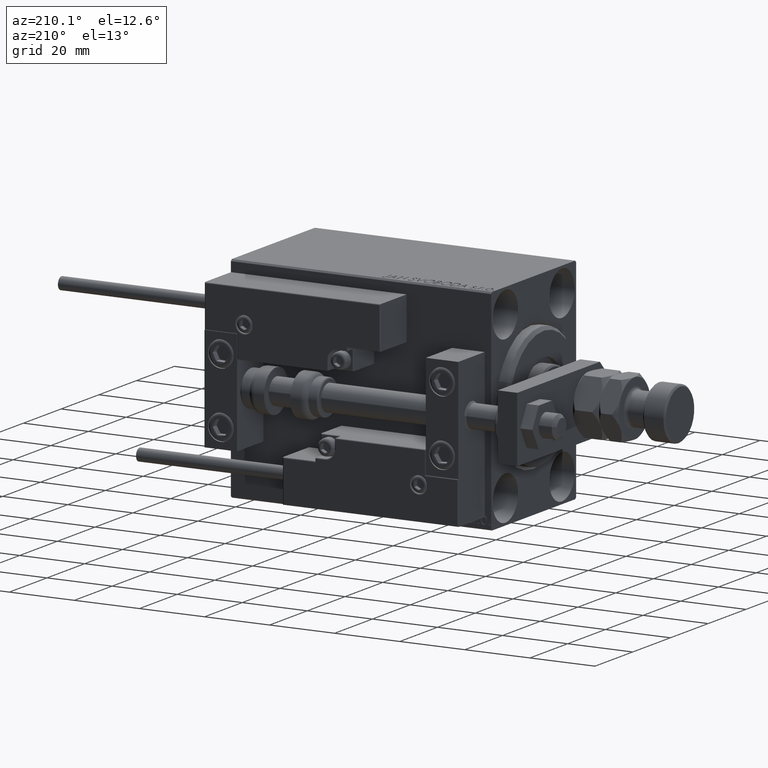
[diagram: clean part render]
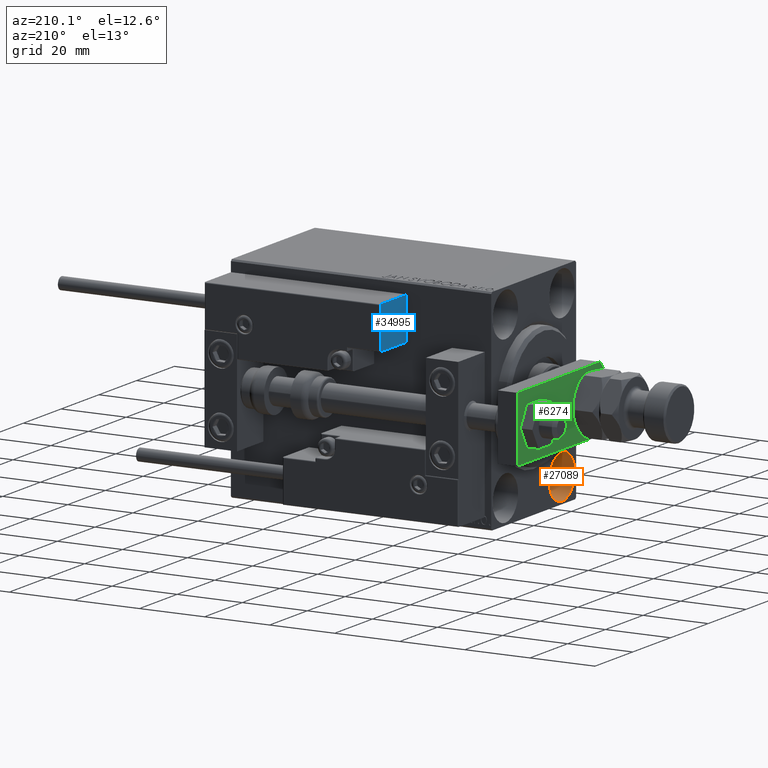
[diagram: same view with three faces highlighted in distinct colors, each labeled with its STEP entity id]
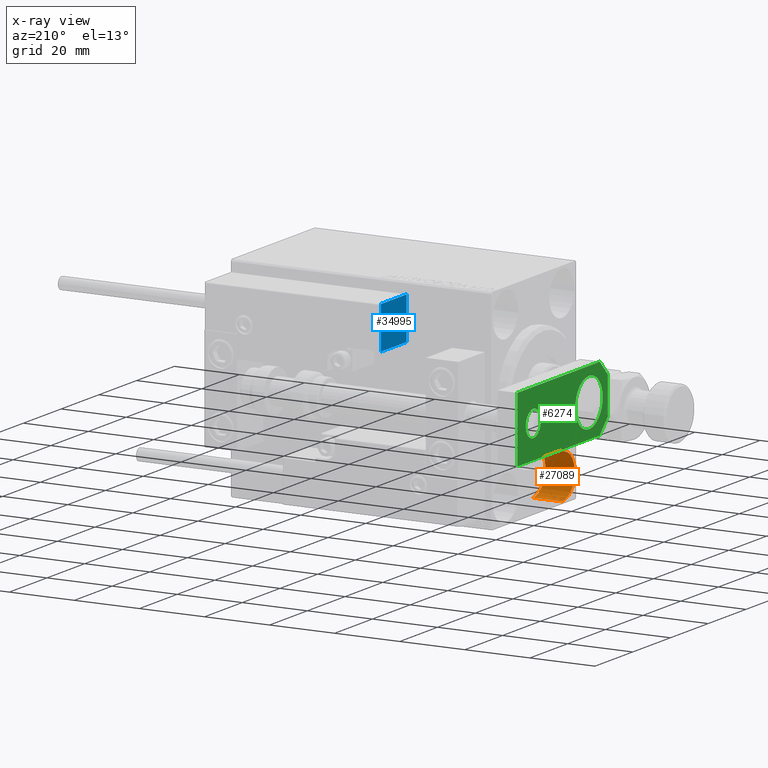
[diagram: x-ray of the same camera — body ghosted, the three highlighted faces saturated]
A machine part, auxiliary view with three faces highlighted in distinct colors.
The next image is the same camera in x-ray (body ghosted, the three faces saturated) — at least one of them is partly hidden behind the body in this view.
Their STEP definitions:

[orange] entity #27089 — the highlighted cylindrical surface (edge-blend (fillet) strip) has radius 6.75 mm, axis along (-1, -0, -0).
#959 = EDGE_LOOP ( 'NONE', ( #30609, #44643, #35064, #48747 ) ) ;
#2972 = EDGE_CURVE ( 'NONE', #47180, #16046, #48397, .T. ) ;
#3697 = VERTEX_POINT ( 'NONE', #36348 ) ;
#3776 = LINE ( 'NONE', #27694, #15138 ) ;
#9168 = VECTOR ( 'NONE', #12382, 1000.000000000000000 ) ;
#11245 = EDGE_CURVE ( 'NONE', #3697, #47180, #3776, .T. ) ;
#12130 = LINE ( 'NONE', #24221, #9168 ) ;
#12382 = DIRECTION ( 'NONE',  ( -1.000000000000000000, -0.000000000000000000, -0.000000000000000000 ) ) ;
#12759 = CARTESIAN_POINT ( 'NONE',  ( 9.000000000000000000, -15.00000000000000355, -25.00000000000000000 ) ) ;
#12984 = CARTESIAN_POINT ( 'NONE',  ( 9.000000000000000000, -15.00000000000000355, -18.25000000000000355 ) ) ;
#13014 = DIRECTION ( 'NONE',  ( -1.000000000000000000, 0.000000000000000000, 0.000000000000000000 ) ) ;
#14410 = CARTESIAN_POINT ( 'NONE',  ( 9.000000000000000000, -15.00000000000000355, -25.00000000000000000 ) ) ;
#15138 = VECTOR ( 'NONE', #43717, 1000.000000000000000 ) ;
#16046 = VERTEX_POINT ( 'NONE', #30353 ) ;
#18994 = AXIS2_PLACEMENT_3D ( 'NONE', #21526, #21001, #48632 ) ;
#20064 = AXIS2_PLACEMENT_3D ( 'NONE', #12759, #13014, #28786 ) ;
#21001 = DIRECTION ( 'NONE',  ( -1.000000000000000000, 0.000000000000000000, 0.000000000000000000 ) ) ;
#21526 = CARTESIAN_POINT ( 'NONE',  ( 0.000000000000000000, -15.00000000000000355, -25.00000000000000000 ) ) ;
#22286 = FACE_OUTER_BOUND ( 'NONE', #959, .T. ) ;
#22617 = CIRCLE ( 'NONE', #20064, 6.749999999999999112 ) ;
#24009 = EDGE_CURVE ( 'NONE', #35345, #16046, #12130, .T. ) ;
#24221 = CARTESIAN_POINT ( 'NONE',  ( 9.000000000000000000, -15.00000000000000355, -18.25000000000000355 ) ) ;
#27089 = ADVANCED_FACE ( 'NONE', ( #22286 ), #34386, .F. ) ;
#27694 = CARTESIAN_POINT ( 'NONE',  ( 9.000000000000000000, -15.00000000000000355, -31.75000000000000000 ) ) ;
#28786 = DIRECTION ( 'NONE',  ( 0.000000000000000000, 0.000000000000000000, 1.000000000000000000 ) ) ;
#30353 = CARTESIAN_POINT ( 'NONE',  ( 0.000000000000000000, -15.00000000000000355, -18.25000000000000355 ) ) ;
#30609 = ORIENTED_EDGE ( 'NONE', *, *, #43607, .F. ) ;
#33874 = DIRECTION ( 'NONE',  ( 0.000000000000000000, 0.000000000000000000, 1.000000000000000000 ) ) ;
#34386 = CYLINDRICAL_SURFACE ( 'NONE', #38656, 6.749999999999999112 ) ;
#35064 = ORIENTED_EDGE ( 'NONE', *, *, #2972, .T. ) ;
#35345 = VERTEX_POINT ( 'NONE', #12984 ) ;
#36348 = CARTESIAN_POINT ( 'NONE',  ( 9.000000000000000000, -15.00000000000000355, -31.75000000000000000 ) ) ;
#38656 = AXIS2_PLACEMENT_3D ( 'NONE', #14410, #46477, #33874 ) ;
#43607 = EDGE_CURVE ( 'NONE', #3697, #35345, #22617, .T. ) ;
#43717 = DIRECTION ( 'NONE',  ( -1.000000000000000000, -0.000000000000000000, -0.000000000000000000 ) ) ;
#44643 = ORIENTED_EDGE ( 'NONE', *, *, #11245, .T. ) ;
#46477 = DIRECTION ( 'NONE',  ( -1.000000000000000000, -0.000000000000000000, -0.000000000000000000 ) ) ;
#47180 = VERTEX_POINT ( 'NONE', #50916 ) ;
#48397 = CIRCLE ( 'NONE', #18994, 6.749999999999999112 ) ;
#48632 = DIRECTION ( 'NONE',  ( 0.000000000000000000, 0.000000000000000000, 1.000000000000000000 ) ) ;
#48747 = ORIENTED_EDGE ( 'NONE', *, *, #24009, .F. ) ;
#50916 = CARTESIAN_POINT ( 'NONE',  ( 0.000000000000000000, -15.00000000000000355, -31.75000000000000000 ) ) ;

[blue] entity #34995 — the highlighted planar face has unit normal (1, -0, -0).
#1737 = VECTOR ( 'NONE', #6452, 1000.000000000000000 ) ;
#3407 = VECTOR ( 'NONE', #40182, 1000.000000000000000 ) ;
#3911 = EDGE_CURVE ( 'NONE', #18667, #27446, #20187, .T. ) ;
#3927 = LINE ( 'NONE', #24157, #3407 ) ;
#5101 = CARTESIAN_POINT ( 'NONE',  ( 27.00000000000006395, 20.00000000000001776, 0.000000000000000000 ) ) ;
#5958 = PLANE ( 'NONE',  #16267 ) ;
#6452 = DIRECTION ( 'NONE',  ( -0.000000000000000000, -1.000000000000000000, -0.000000000000000000 ) ) ;
#7218 = EDGE_CURVE ( 'NONE', #25046, #18667, #36218, .T. ) ;
#7251 = CARTESIAN_POINT ( 'NONE',  ( 27.00000000000006395, 7.000000000000007994, 0.000000000000000000 ) ) ;
#8829 = ORIENTED_EDGE ( 'NONE', *, *, #26097, .F. ) ;
#9226 = ORIENTED_EDGE ( 'NONE', *, *, #47409, .T. ) ;
#9872 = DIRECTION ( 'NONE',  ( -1.000000000000000000, 0.000000000000000000, 0.000000000000000000 ) ) ;
#16267 = AXIS2_PLACEMENT_3D ( 'NONE', #41434, #9872, #30623 ) ;
#17597 = CARTESIAN_POINT ( 'NONE',  ( 27.00000000000006395, 20.00000000000001776, 13.70000000000000107 ) ) ;
#18277 = CARTESIAN_POINT ( 'NONE',  ( 27.00000000000006395, 7.000000000000007994, 13.70000000000000107 ) ) ;
#18667 = VERTEX_POINT ( 'NONE', #7251 ) ;
#19135 = DIRECTION ( 'NONE',  ( -0.000000000000000000, -0.000000000000000000, -1.000000000000000000 ) ) ;
#20016 = VERTEX_POINT ( 'NONE', #17597 ) ;
#20187 = LINE ( 'NONE', #36224, #44247 ) ;
#24157 = CARTESIAN_POINT ( 'NONE',  ( 27.00000000000006395, 20.00000000000001776, 14.00000000000000000 ) ) ;
#25014 = CARTESIAN_POINT ( 'NONE',  ( 27.00000000000006395, 7.000000000000007994, 13.70000000000000107 ) ) ;
#25046 = VERTEX_POINT ( 'NONE', #25014 ) ;
#26097 = EDGE_CURVE ( 'NONE', #20016, #27446, #3927, .T. ) ;
#27072 = EDGE_LOOP ( 'NONE', ( #8829, #9226, #48219, #39961 ) ) ;
#27446 = VERTEX_POINT ( 'NONE', #5101 ) ;
#28320 = CARTESIAN_POINT ( 'NONE',  ( 27.00000000000006395, 7.000000000000007994, 14.00000000000000000 ) ) ;
#30623 = DIRECTION ( 'NONE',  ( 0.000000000000000000, 0.000000000000000000, 1.000000000000000000 ) ) ;
#34995 = ADVANCED_FACE ( 'NONE', ( #38512 ), #5958, .F. ) ;
#36218 = LINE ( 'NONE', #28320, #51903 ) ;
#36224 = CARTESIAN_POINT ( 'NONE',  ( 27.00000000000006395, 7.000000000000007994, 0.000000000000000000 ) ) ;
#38512 = FACE_OUTER_BOUND ( 'NONE', #27072, .T. ) ;
#39961 = ORIENTED_EDGE ( 'NONE', *, *, #3911, .T. ) ;
#40182 = DIRECTION ( 'NONE',  ( -0.000000000000000000, -0.000000000000000000, -1.000000000000000000 ) ) ;
#41434 = CARTESIAN_POINT ( 'NONE',  ( 27.00000000000006395, 7.000000000000007994, 14.00000000000000000 ) ) ;
#43580 = DIRECTION ( 'NONE',  ( 0.000000000000000000, 1.000000000000000000, 0.000000000000000000 ) ) ;
#44247 = VECTOR ( 'NONE', #43580, 1000.000000000000000 ) ;
#47409 = EDGE_CURVE ( 'NONE', #20016, #25046, #51828, .T. ) ;
#48219 = ORIENTED_EDGE ( 'NONE', *, *, #7218, .T. ) ;
#51828 = LINE ( 'NONE', #18277, #1737 ) ;
#51903 = VECTOR ( 'NONE', #19135, 1000.000000000000000 ) ;

[green] entity #6274 — the highlighted planar face has unit normal (-1, 0, 0).
#1729 = EDGE_CURVE ( 'NONE', #7930, #41730, #38683, .T. ) ;
#1829 = EDGE_CURVE ( 'NONE', #41730, #22727, #11864, .T. ) ;
#2413 = ORIENTED_EDGE ( 'NONE', *, *, #12101, .F. ) ;
#2641 = VERTEX_POINT ( 'NONE', #29476 ) ;
#3233 = DIRECTION ( 'NONE',  ( 1.000000000000000000, 0.000000000000000000, 0.000000000000000000 ) ) ;
#3610 = EDGE_CURVE ( 'NONE', #8636, #46577, #15330, .T. ) ;
#3979 = CARTESIAN_POINT ( 'NONE',  ( -10.00000000000000533, 0.000000000000000000, 6.000000000000000000 ) ) ;
#4453 = EDGE_LOOP ( 'NONE', ( #2413, #37684 ) ) ;
#5239 = CARTESIAN_POINT ( 'NONE',  ( 10.00000000000000533, 4.239999999999986890, 6.000000000000000000 ) ) ;
#6274 = ADVANCED_FACE ( 'NONE', ( #13774, #41890, #14553 ), #14800, .T. ) ;
#6775 = VECTOR ( 'NONE', #32190, 1000.000000000000114 ) ;
#7471 = VERTEX_POINT ( 'NONE', #47138 ) ;
#7880 = ORIENTED_EDGE ( 'NONE', *, *, #22035, .F. ) ;
#7930 = VERTEX_POINT ( 'NONE', #27822 ) ;
#8056 = EDGE_CURVE ( 'NONE', #2641, #21985, #26766, .T. ) ;
#8636 = VERTEX_POINT ( 'NONE', #5239 ) ;
#9095 = AXIS2_PLACEMENT_3D ( 'NONE', #26278, #33910, #41273 ) ;
#9472 = LINE ( 'NONE', #18654, #46068 ) ;
#9878 = AXIS2_PLACEMENT_3D ( 'NONE', #15060, #46864, #3233 ) ;
#10000 = AXIS2_PLACEMENT_3D ( 'NONE', #16774, #25700, #41462 ) ;
#10252 = CARTESIAN_POINT ( 'NONE',  ( 5.759999999999998010, 0.000000000000000000, 6.000000000000000000 ) ) ;
#10823 = DIRECTION ( 'NONE',  ( 0.000000000000000000, 0.000000000000000000, 1.000000000000000000 ) ) ;
#11640 = CARTESIAN_POINT ( 'NONE',  ( 10.00000000000000533, 0.000000000000000000, 6.000000000000000000 ) ) ;
#11864 = LINE ( 'NONE', #3979, #33272 ) ;
#12101 = EDGE_CURVE ( 'NONE', #7471, #27657, #19096, .T. ) ;
#13112 = VECTOR ( 'NONE', #15286, 999.9999999999998863 ) ;
#13774 = FACE_BOUND ( 'NONE', #26674, .T. ) ;
#14553 = FACE_BOUND ( 'NONE', #4453, .T. ) ;
#14800 = PLANE ( 'NONE',  #9878 ) ;
#15060 = CARTESIAN_POINT ( 'NONE',  ( 0.000000000000000000, 0.000000000000000000, 6.000000000000000000 ) ) ;
#15286 = DIRECTION ( 'NONE',  ( 0.7071067811865464625, -0.7071067811865486830, 0.000000000000000000 ) ) ;
#15330 = LINE ( 'NONE', #11640, #16532 ) ;
#16300 = ORIENTED_EDGE ( 'NONE', *, *, #27833, .T. ) ;
#16532 = VECTOR ( 'NONE', #43707, 1000.000000000000000 ) ;
#16774 = CARTESIAN_POINT ( 'NONE',  ( -1.432611055310774642E-16, 39.50000000000000000, 6.000000000000000000 ) ) ;
#18141 = DIRECTION ( 'NONE',  ( -1.000000000000000000, 0.000000000000000000, 0.000000000000000000 ) ) ;
#18654 = CARTESIAN_POINT ( 'NONE',  ( 10.00000000000000178, 48.00000000000000000, 6.000000000000000000 ) ) ;
#19096 = CIRCLE ( 'NONE', #32544, 7.250000000000000000 ) ;
#19417 = VECTOR ( 'NONE', #22804, 1000.000000000000000 ) ;
#20309 = CIRCLE ( 'NONE', #36306, 7.250000000000000000 ) ;
#20902 = ORIENTED_EDGE ( 'NONE', *, *, #8056, .F. ) ;
#21301 = CARTESIAN_POINT ( 'NONE',  ( -5.759999999999997122, 0.000000000000000000, 6.000000000000000000 ) ) ;
#21632 = ORIENTED_EDGE ( 'NONE', *, *, #3610, .T. ) ;
#21691 = VERTEX_POINT ( 'NONE', #26340 ) ;
#21985 = VERTEX_POINT ( 'NONE', #29693 ) ;
#22035 = EDGE_CURVE ( 'NONE', #21985, #2641, #47715, .T. ) ;
#22727 = VERTEX_POINT ( 'NONE', #10252 ) ;
#22804 = DIRECTION ( 'NONE',  ( -1.084202172485504434E-16, -1.000000000000000000, 0.000000000000000000 ) ) ;
#22910 = DIRECTION ( 'NONE',  ( 1.000000000000000000, 0.000000000000000000, 0.000000000000000000 ) ) ;
#22946 = EDGE_CURVE ( 'NONE', #46577, #21691, #9472, .T. ) ;
#24478 = DIRECTION ( 'NONE',  ( 1.000000000000000000, 0.000000000000000000, 0.000000000000000000 ) ) ;
#25681 = EDGE_LOOP ( 'NONE', ( #16300, #34523, #49113, #42843, #21632, #27198 ) ) ;
#25700 = DIRECTION ( 'NONE',  ( 0.000000000000000000, 0.000000000000000000, 1.000000000000000000 ) ) ;
#26278 = CARTESIAN_POINT ( 'NONE',  ( -1.432611055310774642E-16, 39.50000000000000000, 6.000000000000000000 ) ) ;
#26340 = CARTESIAN_POINT ( 'NONE',  ( -10.00000000000000000, 48.00000000000000000, 6.000000000000000000 ) ) ;
#26674 = EDGE_LOOP ( 'NONE', ( #20902, #7880 ) ) ;
#26766 = CIRCLE ( 'NONE', #10000, 4.000000000000000888 ) ;
#27121 = CARTESIAN_POINT ( 'NONE',  ( -9.629649721936179265E-32, 10.00000000000000178, 6.000000000000000000 ) ) ;
#27122 = CARTESIAN_POINT ( 'NONE',  ( -2.880000000000006999, -2.879999999999998561, 6.000000000000000000 ) ) ;
#27198 = ORIENTED_EDGE ( 'NONE', *, *, #22946, .T. ) ;
#27399 = EDGE_CURVE ( 'NONE', #22727, #8636, #35616, .T. ) ;
#27657 = VERTEX_POINT ( 'NONE', #43164 ) ;
#27822 = CARTESIAN_POINT ( 'NONE',  ( -10.00000000000000533, 4.240000000000021529, 6.000000000000000000 ) ) ;
#27833 = EDGE_CURVE ( 'NONE', #21691, #7930, #38322, .T. ) ;
#29476 = CARTESIAN_POINT ( 'NONE',  ( -4.000000000000000888, 39.50000000000000000, 6.000000000000000000 ) ) ;
#29693 = CARTESIAN_POINT ( 'NONE',  ( 4.000000000000000888, 39.50000000000000000, 6.000000000000000000 ) ) ;
#31019 = EDGE_CURVE ( 'NONE', #27657, #7471, #20309, .T. ) ;
#32190 = DIRECTION ( 'NONE',  ( 0.7071067811865492381, 0.7071067811865457964, -0.000000000000000000 ) ) ;
#32544 = AXIS2_PLACEMENT_3D ( 'NONE', #42585, #42335, #50990 ) ;
#33272 = VECTOR ( 'NONE', #24478, 1000.000000000000000 ) ;
#33910 = DIRECTION ( 'NONE',  ( 0.000000000000000000, 0.000000000000000000, 1.000000000000000000 ) ) ;
#34523 = ORIENTED_EDGE ( 'NONE', *, *, #1729, .T. ) ;
#34654 = CARTESIAN_POINT ( 'NONE',  ( -10.00000000000000000, 48.00000000000000000, 6.000000000000000000 ) ) ;
#35616 = LINE ( 'NONE', #51385, #6775 ) ;
#36306 = AXIS2_PLACEMENT_3D ( 'NONE', #27121, #10823, #22910 ) ;
#37684 = ORIENTED_EDGE ( 'NONE', *, *, #31019, .F. ) ;
#38322 = LINE ( 'NONE', #34654, #19417 ) ;
#38683 = LINE ( 'NONE', #27122, #13112 ) ;
#41027 = CARTESIAN_POINT ( 'NONE',  ( 10.00000000000000178, 48.00000000000000000, 6.000000000000000000 ) ) ;
#41273 = DIRECTION ( 'NONE',  ( 1.000000000000000000, 0.000000000000000000, 0.000000000000000000 ) ) ;
#41462 = DIRECTION ( 'NONE',  ( 1.000000000000000000, 0.000000000000000000, 0.000000000000000000 ) ) ;
#41730 = VERTEX_POINT ( 'NONE', #21301 ) ;
#41890 = FACE_OUTER_BOUND ( 'NONE', #25681, .T. ) ;
#42335 = DIRECTION ( 'NONE',  ( 0.000000000000000000, 0.000000000000000000, 1.000000000000000000 ) ) ;
#42585 = CARTESIAN_POINT ( 'NONE',  ( -9.629649721936179265E-32, 10.00000000000000178, 6.000000000000000000 ) ) ;
#42843 = ORIENTED_EDGE ( 'NONE', *, *, #27399, .T. ) ;
#43164 = CARTESIAN_POINT ( 'NONE',  ( 7.250000000000000000, 10.00000000000000355, 6.000000000000000000 ) ) ;
#43707 = DIRECTION ( 'NONE',  ( -7.228014483236695816E-17, 1.000000000000000000, 0.000000000000000000 ) ) ;
#46068 = VECTOR ( 'NONE', #18141, 1000.000000000000000 ) ;
#46577 = VERTEX_POINT ( 'NONE', #41027 ) ;
#46864 = DIRECTION ( 'NONE',  ( -0.000000000000000000, 0.000000000000000000, 1.000000000000000000 ) ) ;
#47138 = CARTESIAN_POINT ( 'NONE',  ( -7.250000000000000000, 10.00000000000000178, 6.000000000000000000 ) ) ;
#47715 = CIRCLE ( 'NONE', #9095, 4.000000000000000888 ) ;
#49113 = ORIENTED_EDGE ( 'NONE', *, *, #1829, .T. ) ;
#50990 = DIRECTION ( 'NONE',  ( 1.000000000000000000, 0.000000000000000000, 0.000000000000000000 ) ) ;
#51385 = CARTESIAN_POINT ( 'NONE',  ( 2.879999999999984350, -2.879999999999999005, 6.000000000000000000 ) ) ;